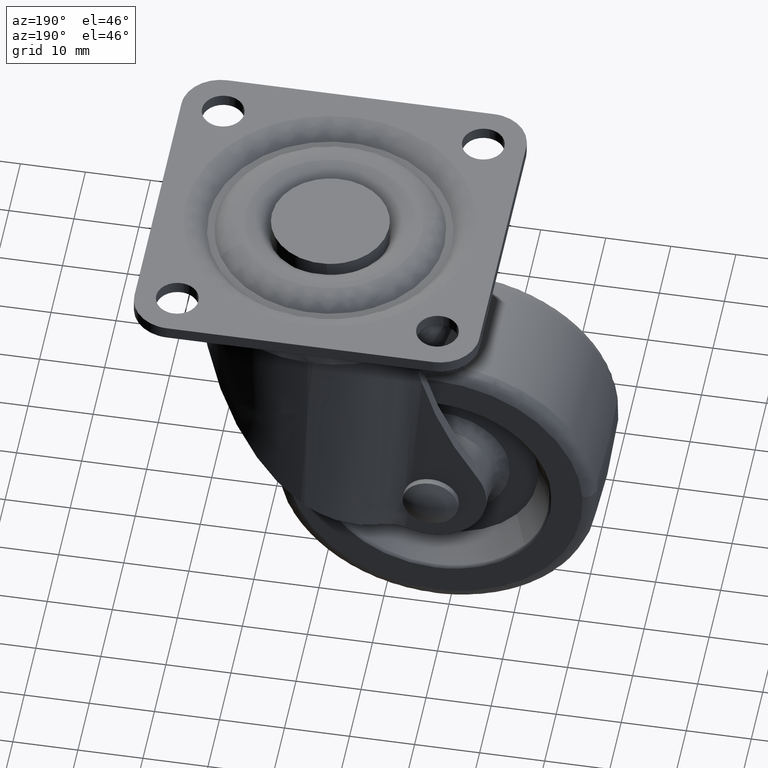
[diagram: clean part render]
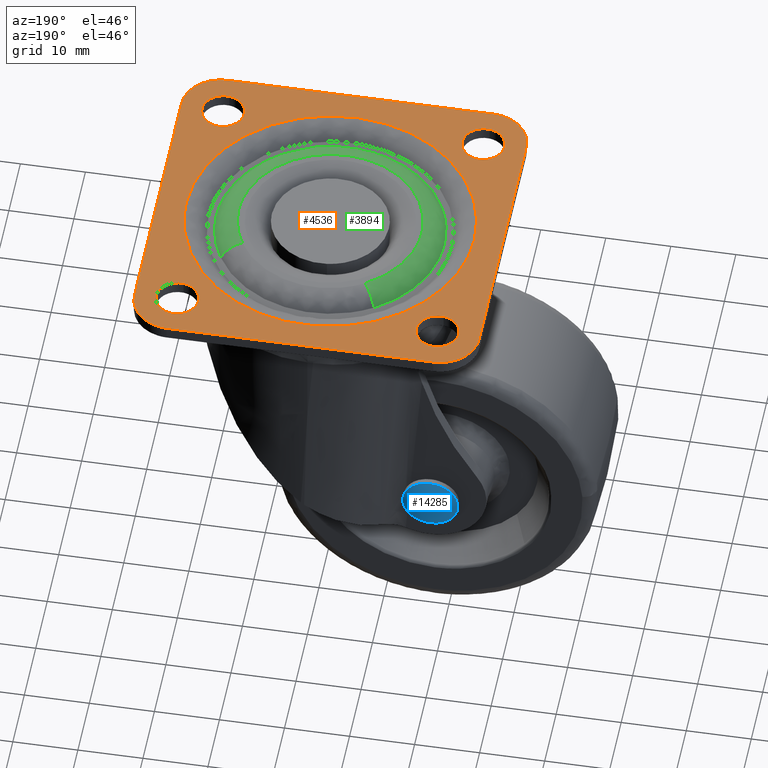
[diagram: same view with three faces highlighted in distinct colors, each labeled with its STEP entity id]
A machine part, auxiliary view with three faces highlighted in distinct colors.
Their STEP definitions:

[orange] entity #4536 — the highlighted face is a freeform B-spline surface patch.
#2809=CARTESIAN_POINT('',(-20.383611262686049,16.772719039324219,1.029293E-016));
#2810=VERTEX_POINT('',#2809);
#2811=CARTESIAN_POINT('',(-16.750000000000000,20.0,0.0));
#2812=VERTEX_POINT('',#2811);
#2813=CARTESIAN_POINT('',(-20.383611262686046,16.772719039324212,1.029293E-016));
#2814=CARTESIAN_POINT('',(-20.192478388920829,16.750000000000004,0.0));
#2815=CARTESIAN_POINT('',(-20.0,16.750000000000000,0.0));
#2816=CARTESIAN_POINT('',(-16.750000000000000,16.750000000000000,0.0));
#2817=CARTESIAN_POINT('',(-16.750000000000000,20.0,0.0));
#2825=(BOUNDED_CURVE()B_SPLINE_CURVE(2,(#2813,#2814,#2815,#2816,#2817),.UNSPECIFIED.,.F.,.U.)B_SPLINE_CURVE_WITH_KNOTS((3,2,3),(0.229562473510242,0.250000000000000,0.500000000000000),.UNSPECIFIED.)CURVE()GEOMETRIC_REPRESENTATION_ITEM()RATIONAL_B_SPLINE_CURVE((0.956026754177298,0.976055948327319,1.0,0.707106781186547,1.0))REPRESENTATION_ITEM(''));
#2826=EDGE_CURVE('',#2810,#2812,#2825,.T.);
#2828=CARTESIAN_POINT('',(-19.801592246430388,23.243938094866088,1.040834E-016));
#2829=VERTEX_POINT('',#2828);
#2830=CARTESIAN_POINT('',(-16.750000000000000,20.0,0.0));
#2831=CARTESIAN_POINT('',(-16.749999999999996,23.057294717289924,0.0));
#2832=CARTESIAN_POINT('',(-19.801592246430392,23.243938094866088,1.040834E-016));
#2840=(BOUNDED_CURVE()B_SPLINE_CURVE(2,(#2830,#2831,#2832),.UNSPECIFIED.,.F.,.U.)B_SPLINE_CURVE_WITH_KNOTS((3,3),(0.500000000000000,0.739332962233316),.UNSPECIFIED.)CURVE()GEOMETRIC_REPRESENTATION_ITEM()RATIONAL_B_SPLINE_CURVE((1.0,0.719603993293302,0.976072041654659))REPRESENTATION_ITEM(''));
#2841=EDGE_CURVE('',#2812,#2829,#2840,.T.);
#2908=CARTESIAN_POINT('',(-23.250000000000000,20.0,0.0));
#2909=VERTEX_POINT('',#2908);
#2910=CARTESIAN_POINT('',(-23.250000000000000,20.0,0.0));
#2911=CARTESIAN_POINT('',(-23.250000000000007,17.113432790750966,0.0));
#2912=CARTESIAN_POINT('',(-20.383611262686042,16.772719039324219,1.029293E-016));
#2920=(BOUNDED_CURVE()B_SPLINE_CURVE(2,(#2910,#2911,#2912),.UNSPECIFIED.,.F.,.U.)B_SPLINE_CURVE_WITH_KNOTS((3,3),(0.0,0.229562473510242),.UNSPECIFIED.)CURVE()GEOMETRIC_REPRESENTATION_ITEM()RATIONAL_B_SPLINE_CURVE((1.0,0.731050832859229,0.956026754177298))REPRESENTATION_ITEM(''));
#2921=EDGE_CURVE('',#2909,#2810,#2920,.T.);
#2955=CARTESIAN_POINT('',(-19.801592246430396,23.243938094866088,1.040834E-016));
#2956=CARTESIAN_POINT('',(-19.900703519198032,23.249999999999996,0.0));
#2957=CARTESIAN_POINT('',(-20.0,23.250000000000000,0.0));
#2958=CARTESIAN_POINT('',(-23.250000000000004,23.250000000000004,0.0));
#2959=CARTESIAN_POINT('',(-23.250000000000000,20.0,0.0));
#2967=(BOUNDED_CURVE()B_SPLINE_CURVE(2,(#2955,#2956,#2957,#2958,#2959),.UNSPECIFIED.,.F.,.U.)B_SPLINE_CURVE_WITH_KNOTS((3,2,3),(0.739332962233317,0.750000000000000,1.0),.UNSPECIFIED.)CURVE()GEOMETRIC_REPRESENTATION_ITEM()RATIONAL_B_SPLINE_CURVE((0.976072041654661,0.987502787893247,1.0,0.707106781186547,1.0))REPRESENTATION_ITEM(''));
#2968=EDGE_CURVE('',#2829,#2909,#2967,.T.);
#2995=CARTESIAN_POINT('',(19.616388737313962,16.772719039324219,1.029293E-016));
#2996=VERTEX_POINT('',#2995);
#2997=CARTESIAN_POINT('',(23.250000000000000,20.0,0.0));
#2998=VERTEX_POINT('',#2997);
#2999=CARTESIAN_POINT('',(19.616388737313954,16.772719039324215,1.029293E-016));
#3000=CARTESIAN_POINT('',(19.807521611079174,16.749999999999996,0.0));
#3001=CARTESIAN_POINT('',(20.0,16.750000000000000,0.0));
#3002=CARTESIAN_POINT('',(23.250000000000004,16.750000000000000,0.0));
#3003=CARTESIAN_POINT('',(23.250000000000000,20.0,0.0));
#3011=(BOUNDED_CURVE()B_SPLINE_CURVE(2,(#2999,#3000,#3001,#3002,#3003),.UNSPECIFIED.,.F.,.U.)B_SPLINE_CURVE_WITH_KNOTS((3,2,3),(0.229562473510243,0.250000000000000,0.500000000000000),.UNSPECIFIED.)CURVE()GEOMETRIC_REPRESENTATION_ITEM()RATIONAL_B_SPLINE_CURVE((0.956026754177298,0.976055948327319,1.0,0.707106781186547,1.0))REPRESENTATION_ITEM(''));
#3012=EDGE_CURVE('',#2996,#2998,#3011,.T.);
#3014=CARTESIAN_POINT('',(20.198407753569601,23.243938094866099,1.040834E-016));
#3015=VERTEX_POINT('',#3014);
#3016=CARTESIAN_POINT('',(23.250000000000000,20.0,0.0));
#3017=CARTESIAN_POINT('',(23.249999999999993,23.057294717289924,0.0));
#3018=CARTESIAN_POINT('',(20.198407753569601,23.243938094866099,1.040834E-016));
#3026=(BOUNDED_CURVE()B_SPLINE_CURVE(2,(#3016,#3017,#3018),.UNSPECIFIED.,.F.,.U.)B_SPLINE_CURVE_WITH_KNOTS((3,3),(0.500000000000000,0.739332962233316),.UNSPECIFIED.)CURVE()GEOMETRIC_REPRESENTATION_ITEM()RATIONAL_B_SPLINE_CURVE((1.0,0.719603993293302,0.976072041654659))REPRESENTATION_ITEM(''));
#3027=EDGE_CURVE('',#2998,#3015,#3026,.T.);
#3094=CARTESIAN_POINT('',(16.750000000000000,20.0,0.0));
#3095=VERTEX_POINT('',#3094);
#3096=CARTESIAN_POINT('',(16.750000000000000,20.0,0.0));
#3097=CARTESIAN_POINT('',(16.750000000000000,17.113432790750970,0.0));
#3098=CARTESIAN_POINT('',(19.616388737313954,16.772719039324215,1.029293E-016));
#3106=(BOUNDED_CURVE()B_SPLINE_CURVE(2,(#3096,#3097,#3098),.UNSPECIFIED.,.F.,.U.)B_SPLINE_CURVE_WITH_KNOTS((3,3),(0.0,0.229562473510243),.UNSPECIFIED.)CURVE()GEOMETRIC_REPRESENTATION_ITEM()RATIONAL_B_SPLINE_CURVE((1.0,0.731050832859229,0.956026754177298))REPRESENTATION_ITEM(''));
#3107=EDGE_CURVE('',#3095,#2996,#3106,.T.);
#3141=CARTESIAN_POINT('',(20.198407753569604,23.243938094866103,1.040834E-016));
#3142=CARTESIAN_POINT('',(20.099296480801964,23.250000000000004,0.0));
#3143=CARTESIAN_POINT('',(20.0,23.250000000000000,0.0));
#3144=CARTESIAN_POINT('',(16.750000000000000,23.250000000000004,0.0));
#3145=CARTESIAN_POINT('',(16.750000000000000,20.0,0.0));
#3153=(BOUNDED_CURVE()B_SPLINE_CURVE(2,(#3141,#3142,#3143,#3144,#3145),.UNSPECIFIED.,.F.,.U.)B_SPLINE_CURVE_WITH_KNOTS((3,2,3),(0.739332962233317,0.750000000000000,1.0),.UNSPECIFIED.)CURVE()GEOMETRIC_REPRESENTATION_ITEM()RATIONAL_B_SPLINE_CURVE((0.976072041654661,0.987502787893247,1.0,0.707106781186547,1.0))REPRESENTATION_ITEM(''));
#3154=EDGE_CURVE('',#3015,#3095,#3153,.T.);
#3181=CARTESIAN_POINT('',(19.616388737313962,-23.227280960675792,1.029293E-016));
#3182=VERTEX_POINT('',#3181);
#3183=CARTESIAN_POINT('',(23.250000000000000,-20.0,0.0));
#3184=VERTEX_POINT('',#3183);
#3185=CARTESIAN_POINT('',(19.616388737313954,-23.227280960675788,1.029293E-016));
#3186=CARTESIAN_POINT('',(19.807521611079174,-23.250000000000007,0.0));
#3187=CARTESIAN_POINT('',(20.0,-23.250000000000000,0.0));
#3188=CARTESIAN_POINT('',(23.250000000000004,-23.250000000000004,0.0));
#3189=CARTESIAN_POINT('',(23.250000000000000,-20.0,0.0));
#3197=(BOUNDED_CURVE()B_SPLINE_CURVE(2,(#3185,#3186,#3187,#3188,#3189),.UNSPECIFIED.,.F.,.U.)B_SPLINE_CURVE_WITH_KNOTS((3,2,3),(0.229562473510243,0.250000000000000,0.500000000000000),.UNSPECIFIED.)CURVE()GEOMETRIC_REPRESENTATION_ITEM()RATIONAL_B_SPLINE_CURVE((0.956026754177298,0.976055948327319,1.0,0.707106781186547,1.0))REPRESENTATION_ITEM(''));
#3198=EDGE_CURVE('',#3182,#3184,#3197,.T.);
#3200=CARTESIAN_POINT('',(20.198407753569601,-16.756061905133912,1.040834E-016));
#3201=VERTEX_POINT('',#3200);
#3202=CARTESIAN_POINT('',(23.250000000000000,-20.0,0.0));
#3203=CARTESIAN_POINT('',(23.249999999999996,-16.942705282710044,0.0));
#3204=CARTESIAN_POINT('',(20.198407753569604,-16.756061905133905,1.040834E-016));
#3212=(BOUNDED_CURVE()B_SPLINE_CURVE(2,(#3202,#3203,#3204),.UNSPECIFIED.,.F.,.U.)B_SPLINE_CURVE_WITH_KNOTS((3,3),(0.500000000000000,0.739332962233318),.UNSPECIFIED.)CURVE()GEOMETRIC_REPRESENTATION_ITEM()RATIONAL_B_SPLINE_CURVE((1.0,0.719603993293299,0.976072041654664))REPRESENTATION_ITEM(''));
#3213=EDGE_CURVE('',#3184,#3201,#3212,.T.);
#3280=CARTESIAN_POINT('',(16.750000000000000,-20.0,0.0));
#3281=VERTEX_POINT('',#3280);
#3282=CARTESIAN_POINT('',(16.750000000000000,-20.0,0.0));
#3283=CARTESIAN_POINT('',(16.750000000000000,-22.886567209249037,0.0));
#3284=CARTESIAN_POINT('',(19.616388737313954,-23.227280960675788,1.029293E-016));
#3292=(BOUNDED_CURVE()B_SPLINE_CURVE(2,(#3282,#3283,#3284),.UNSPECIFIED.,.F.,.U.)B_SPLINE_CURVE_WITH_KNOTS((3,3),(0.0,0.229562473510243),.UNSPECIFIED.)CURVE()GEOMETRIC_REPRESENTATION_ITEM()RATIONAL_B_SPLINE_CURVE((1.0,0.731050832859229,0.956026754177298))REPRESENTATION_ITEM(''));
#3293=EDGE_CURVE('',#3281,#3182,#3292,.T.);
#3327=CARTESIAN_POINT('',(20.198407753569608,-16.756061905133908,1.040834E-016));
#3328=CARTESIAN_POINT('',(20.099296480801961,-16.749999999999996,0.0));
#3329=CARTESIAN_POINT('',(20.0,-16.750000000000000,0.0));
#3330=CARTESIAN_POINT('',(16.750000000000000,-16.750000000000000,0.0));
#3331=CARTESIAN_POINT('',(16.750000000000000,-20.0,0.0));
#3339=(BOUNDED_CURVE()B_SPLINE_CURVE(2,(#3327,#3328,#3329,#3330,#3331),.UNSPECIFIED.,.F.,.U.)B_SPLINE_CURVE_WITH_KNOTS((3,2,3),(0.739332962233317,0.750000000000000,1.0),.UNSPECIFIED.)CURVE()GEOMETRIC_REPRESENTATION_ITEM()RATIONAL_B_SPLINE_CURVE((0.976072041654661,0.987502787893247,1.0,0.707106781186547,1.0))REPRESENTATION_ITEM(''));
#3340=EDGE_CURVE('',#3201,#3281,#3339,.T.);
#3367=CARTESIAN_POINT('',(-20.383611262686049,-23.227280960675792,1.029293E-016));
#3368=VERTEX_POINT('',#3367);
#3369=CARTESIAN_POINT('',(-16.750000000000000,-20.0,0.0));
#3370=VERTEX_POINT('',#3369);
#3371=CARTESIAN_POINT('',(-20.383611262686046,-23.227280960675788,1.029293E-016));
#3372=CARTESIAN_POINT('',(-20.192478388920829,-23.250000000000000,0.0));
#3373=CARTESIAN_POINT('',(-20.0,-23.250000000000000,0.0));
#3374=CARTESIAN_POINT('',(-16.750000000000000,-23.250000000000004,0.0));
#3375=CARTESIAN_POINT('',(-16.750000000000000,-20.0,0.0));
#3383=(BOUNDED_CURVE()B_SPLINE_CURVE(2,(#3371,#3372,#3373,#3374,#3375),.UNSPECIFIED.,.F.,.U.)B_SPLINE_CURVE_WITH_KNOTS((3,2,3),(0.229562473510242,0.250000000000000,0.500000000000000),.UNSPECIFIED.)CURVE()GEOMETRIC_REPRESENTATION_ITEM()RATIONAL_B_SPLINE_CURVE((0.956026754177298,0.976055948327319,1.0,0.707106781186547,1.0))REPRESENTATION_ITEM(''));
#3384=EDGE_CURVE('',#3368,#3370,#3383,.T.);
#3386=CARTESIAN_POINT('',(-19.801592246430388,-16.756061905133912,1.040834E-016));
#3387=VERTEX_POINT('',#3386);
#3388=CARTESIAN_POINT('',(-16.750000000000000,-20.0,0.0));
#3389=CARTESIAN_POINT('',(-16.749999999999996,-16.942705282710079,0.0));
#3390=CARTESIAN_POINT('',(-19.801592246430392,-16.756061905133905,1.040834E-016));
#3398=(BOUNDED_CURVE()B_SPLINE_CURVE(2,(#3388,#3389,#3390),.UNSPECIFIED.,.F.,.U.)B_SPLINE_CURVE_WITH_KNOTS((3,3),(0.500000000000000,0.739332962233316),.UNSPECIFIED.)CURVE()GEOMETRIC_REPRESENTATION_ITEM()RATIONAL_B_SPLINE_CURVE((1.0,0.719603993293302,0.976072041654659))REPRESENTATION_ITEM(''));
#3399=EDGE_CURVE('',#3370,#3387,#3398,.T.);
#3466=CARTESIAN_POINT('',(-23.250000000000000,-20.0,0.0));
#3467=VERTEX_POINT('',#3466);
#3468=CARTESIAN_POINT('',(-23.250000000000000,-20.0,0.0));
#3469=CARTESIAN_POINT('',(-23.250000000000007,-22.886567209249034,0.0));
#3470=CARTESIAN_POINT('',(-20.383611262686042,-23.227280960675785,1.029293E-016));
#3478=(BOUNDED_CURVE()B_SPLINE_CURVE(2,(#3468,#3469,#3470),.UNSPECIFIED.,.F.,.U.)B_SPLINE_CURVE_WITH_KNOTS((3,3),(0.0,0.229562473510242),.UNSPECIFIED.)CURVE()GEOMETRIC_REPRESENTATION_ITEM()RATIONAL_B_SPLINE_CURVE((1.0,0.731050832859229,0.956026754177298))REPRESENTATION_ITEM(''));
#3479=EDGE_CURVE('',#3467,#3368,#3478,.T.);
#3513=CARTESIAN_POINT('',(-19.801592246430396,-16.756061905133908,1.040834E-016));
#3514=CARTESIAN_POINT('',(-19.900703519198032,-16.750000000000000,0.0));
#3515=CARTESIAN_POINT('',(-20.0,-16.750000000000000,0.0));
#3516=CARTESIAN_POINT('',(-23.250000000000004,-16.750000000000000,0.0));
#3517=CARTESIAN_POINT('',(-23.250000000000000,-20.0,0.0));
#3525=(BOUNDED_CURVE()B_SPLINE_CURVE(2,(#3513,#3514,#3515,#3516,#3517),.UNSPECIFIED.,.F.,.U.)B_SPLINE_CURVE_WITH_KNOTS((3,2,3),(0.739332962233317,0.750000000000000,1.0),.UNSPECIFIED.)CURVE()GEOMETRIC_REPRESENTATION_ITEM()RATIONAL_B_SPLINE_CURVE((0.976072041654661,0.987502787893247,1.0,0.707106781186547,1.0))REPRESENTATION_ITEM(''));
#3526=EDGE_CURVE('',#3387,#3467,#3525,.T.);
#3609=CARTESIAN_POINT('',(-19.286841162281359,10.920858866609480,-6.720702E-016));
#3610=VERTEX_POINT('',#3609);
#3624=CARTESIAN_POINT('',(-22.164101615137749,0.0,0.0));
#3625=VERTEX_POINT('',#3624);
#3626=CARTESIAN_POINT('',(-22.164101615137749,0.0,0.0));
#3627=CARTESIAN_POINT('',(-22.164101615137749,5.839457667932270,0.0));
#3628=CARTESIAN_POINT('',(-19.286841162281362,10.920858866609478,-6.720702E-016));
#3636=(BOUNDED_CURVE()B_SPLINE_CURVE(2,(#3626,#3627,#3628),.UNSPECIFIED.,.F.,.U.)B_SPLINE_CURVE_WITH_KNOTS((3,3),(0.0,0.083983638484645),.UNSPECIFIED.)CURVE()GEOMETRIC_REPRESENTATION_ITEM()RATIONAL_B_SPLINE_CURVE((1.0,0.901607047186268,0.869321279800898))REPRESENTATION_ITEM(''));
#3637=EDGE_CURVE('',#3625,#3610,#3636,.T.);
#3639=CARTESIAN_POINT('',(22.164101615137749,0.0,0.0));
#3640=VERTEX_POINT('',#3639);
#3641=CARTESIAN_POINT('',(22.164101615137749,0.0,0.0));
#3642=CARTESIAN_POINT('',(22.164101615137742,-22.164101615137742,0.0));
#3643=CARTESIAN_POINT('',(0.0,-22.164101615137749,0.0));
#3644=CARTESIAN_POINT('',(-22.164101615137742,-22.164101615137742,0.0));
#3645=CARTESIAN_POINT('',(-22.164101615137749,0.0,0.0));
#3653=(BOUNDED_CURVE()B_SPLINE_CURVE(2,(#3641,#3642,#3643,#3644,#3645),.UNSPECIFIED.,.F.,.U.)B_SPLINE_CURVE_WITH_KNOTS((3,2,3),(0.500000000000000,0.750000000000000,1.0),.UNSPECIFIED.)CURVE()GEOMETRIC_REPRESENTATION_ITEM()RATIONAL_B_SPLINE_CURVE((1.0,0.707106781186548,1.0,0.707106781186548,1.0))REPRESENTATION_ITEM(''));
#3654=EDGE_CURVE('',#3640,#3625,#3653,.T.);
#3656=CARTESIAN_POINT('',(10.920858866609480,19.286841162281359,-6.720702E-016));
#3657=VERTEX_POINT('',#3656);
#3658=CARTESIAN_POINT('',(10.920858866609478,19.286841162281362,-6.720702E-016));
#3659=CARTESIAN_POINT('',(22.164101615137756,12.920538550810214,0.0));
#3660=CARTESIAN_POINT('',(22.164101615137749,0.0,0.0));
#3668=(BOUNDED_CURVE()B_SPLINE_CURVE(2,(#3658,#3659,#3660),.UNSPECIFIED.,.F.,.U.)B_SPLINE_CURVE_WITH_KNOTS((3,3),(0.333983638484645,0.500000000000000),.UNSPECIFIED.)CURVE()GEOMETRIC_REPRESENTATION_ITEM()RATIONAL_B_SPLINE_CURVE((0.869321279800898,0.805499734000279,1.0))REPRESENTATION_ITEM(''));
#3669=EDGE_CURVE('',#3657,#3640,#3668,.T.);
#3720=CARTESIAN_POINT('',(-19.286841162281362,10.920858866609478,-6.720702E-016));
#3721=CARTESIAN_POINT('',(-12.920538550810214,22.164101615137742,0.0));
#3722=CARTESIAN_POINT('',(0.0,22.164101615137749,0.0));
#3723=CARTESIAN_POINT('',(5.839457667932281,22.164101615137749,0.0));
#3724=CARTESIAN_POINT('',(10.920858866609478,19.286841162281366,-6.720702E-016));
#3732=(BOUNDED_CURVE()B_SPLINE_CURVE(2,(#3720,#3721,#3722,#3723,#3724),.UNSPECIFIED.,.F.,.U.)B_SPLINE_CURVE_WITH_KNOTS((3,2,3),(0.083983638484645,0.250000000000000,0.333983638484645),.UNSPECIFIED.)CURVE()GEOMETRIC_REPRESENTATION_ITEM()RATIONAL_B_SPLINE_CURVE((0.869321279800898,0.805499734000279,1.0,0.901607047186268,0.869321279800898))REPRESENTATION_ITEM(''));
#3733=EDGE_CURVE('',#3610,#3657,#3732,.T.);
#4411=CARTESIAN_POINT('',(-29.147349897275721,29.147349897275721,0.0));
#4412=CARTESIAN_POINT('',(29.147351318846500,29.147349897275721,0.0));
#4413=CARTESIAN_POINT('',(-29.147349897275721,-29.147351318846489,0.0));
#4414=CARTESIAN_POINT('',(29.147351318846500,-29.147351318846489,0.0));
#4415=B_SPLINE_SURFACE_WITH_KNOTS('',1,1,((#4411,#4413),(#4412,#4414)),.UNSPECIFIED.,.F.,.F.,.U.,(2,2),(2,2),(0.0,58.294701216122220),(0.0,58.294701216122213),.UNSPECIFIED.);
#4416=CARTESIAN_POINT('',(20.500000000000000,26.500000000000000,0.0));
#4417=VERTEX_POINT('',#4416);
#4418=CARTESIAN_POINT('',(-20.500000000000000,26.500000000000000,0.0));
#4419=VERTEX_POINT('',#4418);
#4420=CARTESIAN_POINT('',(20.500000000000000,26.500000000000000,0.0));
#4421=CARTESIAN_POINT('',(-20.500000000000000,26.500000000000000,0.0));
#4422=QUASI_UNIFORM_CURVE('',1,(#4420,#4421),.UNSPECIFIED.,.F.,.U.);
#4423=EDGE_CURVE('',#4417,#4419,#4422,.T.);
#4424=ORIENTED_EDGE('',*,*,#4423,.T.);
#4425=CARTESIAN_POINT('',(-26.500000000000000,20.500000000000000,0.0));
#4426=VERTEX_POINT('',#4425);
#4427=CARTESIAN_POINT('',(-20.500000000000000,26.500000000000000,0.0));
#4428=CARTESIAN_POINT('',(-26.500000000000000,26.500000000000000,0.0));
#4429=CARTESIAN_POINT('',(-26.500000000000000,20.500000000000000,0.0));
#4437=(BOUNDED_CURVE()B_SPLINE_CURVE(2,(#4427,#4428,#4429),.UNSPECIFIED.,.F.,.U.)CURVE()GEOMETRIC_REPRESENTATION_ITEM()QUASI_UNIFORM_CURVE()RATIONAL_B_SPLINE_CURVE((1.0,0.707106781186548,1.0))REPRESENTATION_ITEM(''));
#4438=EDGE_CURVE('',#4419,#4426,#4437,.T.);
#4439=ORIENTED_EDGE('',*,*,#4438,.T.);
#4440=CARTESIAN_POINT('',(-26.500000000000000,-20.500000000000000,0.0));
#4441=VERTEX_POINT('',#4440);
#4442=CARTESIAN_POINT('',(-26.500000000000000,20.500000000000000,0.0));
#4443=CARTESIAN_POINT('',(-26.500000000000000,-20.500000000000000,0.0));
#4444=QUASI_UNIFORM_CURVE('',1,(#4442,#4443),.UNSPECIFIED.,.F.,.U.);
#4445=EDGE_CURVE('',#4426,#4441,#4444,.T.);
#4446=ORIENTED_EDGE('',*,*,#4445,.T.);
#4447=CARTESIAN_POINT('',(-20.500000000000000,-26.500000000000000,0.0));
#4448=VERTEX_POINT('',#4447);
#4449=CARTESIAN_POINT('',(-26.500000000000000,-20.500000000000000,0.0));
#4450=CARTESIAN_POINT('',(-26.500000000000000,-26.500000000000000,0.0));
#4451=CARTESIAN_POINT('',(-20.500000000000000,-26.500000000000000,0.0));
#4459=(BOUNDED_CURVE()B_SPLINE_CURVE(2,(#4449,#4450,#4451),.UNSPECIFIED.,.F.,.U.)CURVE()GEOMETRIC_REPRESENTATION_ITEM()QUASI_UNIFORM_CURVE()RATIONAL_B_SPLINE_CURVE((1.0,0.707106781186548,1.0))REPRESENTATION_ITEM(''));
#4460=EDGE_CURVE('',#4441,#4448,#4459,.T.);
#4461=ORIENTED_EDGE('',*,*,#4460,.T.);
#4462=CARTESIAN_POINT('',(20.500000000000000,-26.500000000000000,0.0));
#4463=VERTEX_POINT('',#4462);
#4464=CARTESIAN_POINT('',(-20.500000000000000,-26.500000000000000,0.0));
#4465=CARTESIAN_POINT('',(20.500000000000000,-26.500000000000000,0.0));
#4466=QUASI_UNIFORM_CURVE('',1,(#4464,#4465),.UNSPECIFIED.,.F.,.U.);
#4467=EDGE_CURVE('',#4448,#4463,#4466,.T.);
#4468=ORIENTED_EDGE('',*,*,#4467,.T.);
#4469=CARTESIAN_POINT('',(26.500000000000000,-20.500000000000000,0.0));
#4470=VERTEX_POINT('',#4469);
#4471=CARTESIAN_POINT('',(20.500000000000000,-26.500000000000000,0.0));
#4472=CARTESIAN_POINT('',(26.500000000000000,-26.500000000000000,0.0));
#4473=CARTESIAN_POINT('',(26.500000000000000,-20.500000000000000,0.0));
#4481=(BOUNDED_CURVE()B_SPLINE_CURVE(2,(#4471,#4472,#4473),.UNSPECIFIED.,.F.,.U.)CURVE()GEOMETRIC_REPRESENTATION_ITEM()QUASI_UNIFORM_CURVE()RATIONAL_B_SPLINE_CURVE((1.0,0.707106781186548,1.0))REPRESENTATION_ITEM(''));
#4482=EDGE_CURVE('',#4463,#4470,#4481,.T.);
#4483=ORIENTED_EDGE('',*,*,#4482,.T.);
#4484=CARTESIAN_POINT('',(26.500000000000000,20.500000000000000,0.0));
#4485=VERTEX_POINT('',#4484);
#4486=CARTESIAN_POINT('',(26.500000000000000,-20.500000000000000,0.0));
#4487=CARTESIAN_POINT('',(26.500000000000000,20.500000000000000,0.0));
#4488=QUASI_UNIFORM_CURVE('',1,(#4486,#4487),.UNSPECIFIED.,.F.,.U.);
#4489=EDGE_CURVE('',#4470,#4485,#4488,.T.);
#4490=ORIENTED_EDGE('',*,*,#4489,.T.);
#4491=CARTESIAN_POINT('',(26.500000000000000,20.500000000000000,0.0));
#4492=CARTESIAN_POINT('',(26.500000000000000,26.500000000000000,0.0));
#4493=CARTESIAN_POINT('',(20.500000000000000,26.500000000000000,0.0));
#4501=(BOUNDED_CURVE()B_SPLINE_CURVE(2,(#4491,#4492,#4493),.UNSPECIFIED.,.F.,.U.)CURVE()GEOMETRIC_REPRESENTATION_ITEM()QUASI_UNIFORM_CURVE()RATIONAL_B_SPLINE_CURVE((1.0,0.707106781186548,1.0))REPRESENTATION_ITEM(''));
#4502=EDGE_CURVE('',#4485,#4417,#4501,.T.);
#4503=ORIENTED_EDGE('',*,*,#4502,.T.);
#4504=EDGE_LOOP('',(#4424,#4439,#4446,#4461,#4468,#4483,#4490,#4503));
#4505=FACE_OUTER_BOUND('',#4504,.T.);
#4506=ORIENTED_EDGE('',*,*,#3654,.T.);
#4507=ORIENTED_EDGE('',*,*,#3637,.T.);
#4508=ORIENTED_EDGE('',*,*,#3733,.T.);
#4509=ORIENTED_EDGE('',*,*,#3669,.T.);
#4510=EDGE_LOOP('',(#4506,#4507,#4508,#4509));
#4511=FACE_BOUND('',#4510,.T.);
#4512=ORIENTED_EDGE('',*,*,#3399,.F.);
#4513=ORIENTED_EDGE('',*,*,#3384,.F.);
#4514=ORIENTED_EDGE('',*,*,#3479,.F.);
#4515=ORIENTED_EDGE('',*,*,#3526,.F.);
#4516=EDGE_LOOP('',(#4512,#4513,#4514,#4515));
#4517=FACE_BOUND('',#4516,.T.);
#4518=ORIENTED_EDGE('',*,*,#3213,.F.);
#4519=ORIENTED_EDGE('',*,*,#3198,.F.);
#4520=ORIENTED_EDGE('',*,*,#3293,.F.);
#4521=ORIENTED_EDGE('',*,*,#3340,.F.);
#4522=EDGE_LOOP('',(#4518,#4519,#4520,#4521));
#4523=FACE_BOUND('',#4522,.T.);
#4524=ORIENTED_EDGE('',*,*,#3027,.F.);
#4525=ORIENTED_EDGE('',*,*,#3012,.F.);
#4526=ORIENTED_EDGE('',*,*,#3107,.F.);
#4527=ORIENTED_EDGE('',*,*,#3154,.F.);
#4528=EDGE_LOOP('',(#4524,#4525,#4526,#4527));
#4529=FACE_BOUND('',#4528,.T.);
#4530=ORIENTED_EDGE('',*,*,#2841,.F.);
#4531=ORIENTED_EDGE('',*,*,#2826,.F.);
#4532=ORIENTED_EDGE('',*,*,#2921,.F.);
#4533=ORIENTED_EDGE('',*,*,#2968,.F.);
#4534=EDGE_LOOP('',(#4530,#4531,#4532,#4533));
#4535=FACE_BOUND('',#4534,.T.);
#4536=ADVANCED_FACE('',(#4505,#4511,#4517,#4523,#4529,#4535),#4415,.F.);

[blue] entity #14285 — the highlighted face is a freeform B-spline surface patch.
#13686=CARTESIAN_POINT('',(-22.242072893288299,14.933316000000040,-43.259159293097532));
#13687=VERTEX_POINT('',#13686);
#13693=CARTESIAN_POINT('',(-18.0,14.933316000000040,-47.249702999999911));
#13694=VERTEX_POINT('',#13693);
#13695=CARTESIAN_POINT('',(-18.0,14.933316000000040,-47.249702999999911));
#13696=CARTESIAN_POINT('',(-21.998000784208639,14.933316000000039,-47.249702999999911));
#13697=CARTESIAN_POINT('',(-22.242072893288302,14.933316000000042,-43.259159293097525));
#13705=(BOUNDED_CURVE()B_SPLINE_CURVE(2,(#13695,#13696,#13697),.UNSPECIFIED.,.F.,.U.)B_SPLINE_CURVE_WITH_KNOTS((3,3),(0.500000000000000,0.739332962235916),.UNSPECIFIED.)CURVE()GEOMETRIC_REPRESENTATION_ITEM()RATIONAL_B_SPLINE_CURVE((1.0,0.719603993290256,0.976072041660231))REPRESENTATION_ITEM(''));
#13706=EDGE_CURVE('',#13694,#13687,#13705,.T.);
#13708=CARTESIAN_POINT('',(-13.779709512958741,14.933316000000040,-42.498057502673127));
#13709=VERTEX_POINT('',#13708);
#13710=CARTESIAN_POINT('',(-13.779709512958744,14.933316000000037,-42.498057502673134));
#13711=CARTESIAN_POINT('',(-13.750000000000082,14.933316000000044,-42.748000491443342));
#13712=CARTESIAN_POINT('',(-13.750000000000080,14.933316000000040,-42.999702999999997));
#13713=CARTESIAN_POINT('',(-13.750000000000082,14.933316000000042,-47.249702999999911));
#13714=CARTESIAN_POINT('',(-18.0,14.933316000000040,-47.249702999999911));
#13722=(BOUNDED_CURVE()B_SPLINE_CURVE(2,(#13710,#13711,#13712,#13713,#13714),.UNSPECIFIED.,.F.,.U.)B_SPLINE_CURVE_WITH_KNOTS((3,2,3),(0.229562473512789,0.250000000000000,0.500000000000000),.UNSPECIFIED.)CURVE()GEOMETRIC_REPRESENTATION_ITEM()RATIONAL_B_SPLINE_CURVE((0.956026754182288,0.976055948330302,1.0,0.707106781186548,1.0))REPRESENTATION_ITEM(''));
#13723=EDGE_CURVE('',#13709,#13694,#13722,.T.);
#13767=CARTESIAN_POINT('',(-18.0,14.933316000000040,-38.749703000000089));
#13768=VERTEX_POINT('',#13767);
#13769=CARTESIAN_POINT('',(-18.0,14.933316000000040,-38.749703000000089));
#13770=CARTESIAN_POINT('',(-14.225258264770991,14.933316000000037,-38.749703000000096));
#13771=CARTESIAN_POINT('',(-13.779709512958735,14.933316000000040,-42.498057502673142));
#13779=(BOUNDED_CURVE()B_SPLINE_CURVE(2,(#13769,#13770,#13771),.UNSPECIFIED.,.F.,.U.)B_SPLINE_CURVE_WITH_KNOTS((3,3),(0.0,0.229562473512788),.UNSPECIFIED.)CURVE()GEOMETRIC_REPRESENTATION_ITEM()RATIONAL_B_SPLINE_CURVE((1.0,0.731050832856246,0.956026754182288))REPRESENTATION_ITEM(''));
#13780=EDGE_CURVE('',#13768,#13709,#13779,.T.);
#13782=CARTESIAN_POINT('',(-22.242072893288306,14.933316000000037,-43.259159293097525));
#13783=CARTESIAN_POINT('',(-22.249999999999915,14.933316000000040,-43.129552244093595));
#13784=CARTESIAN_POINT('',(-22.249999999999918,14.933316000000040,-42.999702999999997));
#13785=CARTESIAN_POINT('',(-22.249999999999908,14.933316000000042,-38.749703000000089));
#13786=CARTESIAN_POINT('',(-18.0,14.933316000000040,-38.749703000000089));
#13794=(BOUNDED_CURVE()B_SPLINE_CURVE(2,(#13782,#13783,#13784,#13785,#13786),.UNSPECIFIED.,.F.,.U.)B_SPLINE_CURVE_WITH_KNOTS((3,2,3),(0.739332962235916,0.750000000000000,1.0),.UNSPECIFIED.)CURVE()GEOMETRIC_REPRESENTATION_ITEM()RATIONAL_B_SPLINE_CURVE((0.976072041660232,0.987502787896292,1.0,0.707106781186548,1.0))REPRESENTATION_ITEM(''));
#13795=EDGE_CURVE('',#13687,#13768,#13794,.T.);
#14255=CARTESIAN_POINT('',(-22.311764384209759,13.619406972391049,-38.687842702063499));
#14256=CARTESIAN_POINT('',(-20.308536754714364,14.725392145570662,-38.382526785347260));
#14257=CARTESIAN_POINT('',(-15.691450080178244,14.725392145570662,-38.382526785347260));
#14258=CARTESIAN_POINT('',(-13.688214278678823,13.619395192099045,-38.687845954105860));
#14259=CARTESIAN_POINT('',(-22.617088054420911,14.725444834941449,-40.691107620015728));
#14260=CARTESIAN_POINT('',(-20.484465609128520,16.0,-40.515182124782157));
#14261=CARTESIAN_POINT('',(-15.515520222478250,16.0,-40.515182124782157));
#14262=CARTESIAN_POINT('',(-13.382889344134357,14.725431327213512,-40.691109484473095));
#14263=CARTESIAN_POINT('',(-22.617088054420911,14.725444834941449,-45.308297870365550));
#14264=CARTESIAN_POINT('',(-20.484465609128520,16.0,-45.484223326763903));
#14265=CARTESIAN_POINT('',(-15.515520222478250,16.0,-45.484223326763903));
#14266=CARTESIAN_POINT('',(-13.382889344134357,14.725431327213512,-45.308296005908637));
#14267=CARTESIAN_POINT('',(-22.311764510094999,13.619407428411506,-47.311562471988388));
#14268=CARTESIAN_POINT('',(-20.308536826886300,14.725392668457687,-47.616878339765670));
#14269=CARTESIAN_POINT('',(-15.691450008005909,14.725392668457687,-47.616878339765670));
#14270=CARTESIAN_POINT('',(-13.688214152793059,13.619395648118815,-47.311559219946517));
#14278=(BOUNDED_SURFACE()B_SPLINE_SURFACE(2,2,((#14255,#14259,#14263,#14267),(#14256,#14260,#14264,#14268),(#14257,#14261,#14265,#14269),(#14258,#14262,#14266,#14270)),.UNSPECIFIED.,.F.,.F.,.U.)B_SPLINE_SURFACE_WITH_KNOTS((3,1,3),(3,1,3),(0.0,4.786548779606548,9.573124855910255),(0.0,4.786655254750084,9.573309452853827),.UNSPECIFIED.)GEOMETRIC_REPRESENTATION_ITEM()RATIONAL_B_SPLINE_SURFACE(((1.152412510399204,1.076204560036326,1.076204560036326,1.152412476753646),(1.076207950362879,1.0,1.0,1.076207916717321),(1.076207950362879,1.0,1.0,1.076207916717321),(1.152413379559355,1.076205429196476,1.076205429196476,1.152413345913797)))REPRESENTATION_ITEM('')SURFACE());
#14279=ORIENTED_EDGE('',*,*,#13780,.T.);
#14280=ORIENTED_EDGE('',*,*,#13723,.T.);
#14281=ORIENTED_EDGE('',*,*,#13706,.T.);
#14282=ORIENTED_EDGE('',*,*,#13795,.T.);
#14283=EDGE_LOOP('',(#14279,#14280,#14281,#14282));
#14284=FACE_OUTER_BOUND('',#14283,.T.);
#14285=ADVANCED_FACE('',(#14284),#14278,.T.);

[green] entity #3894 — the highlighted face is a freeform B-spline surface patch.
#3739=CARTESIAN_POINT('',(-9.370972055380136,14.950973127262051,-2.174443489445107));
#3740=CARTESIAN_POINT('',(-23.489974957974127,6.101463431549768,-2.174443489445106));
#3741=CARTESIAN_POINT('',(-15.462448496077743,-8.500552995009834,-2.174443489445107));
#3742=CARTESIAN_POINT('',(-6.961895501067906,-23.963001491087571,-2.174443489445107));
#3743=CARTESIAN_POINT('',(8.500552995009834,-15.462448496077743,-2.174443489445107));
#3744=CARTESIAN_POINT('',(23.963001491087571,-6.961895501067908,-2.174443489445107));
#3745=CARTESIAN_POINT('',(15.462448496077743,8.500552995009830,-2.174443489445107));
#3746=CARTESIAN_POINT('',(-8.745143474348980,13.952491193693866,0.122976446364422));
#3747=CARTESIAN_POINT('',(-21.921226528299076,5.693984871266579,0.122976446364422));
#3748=CARTESIAN_POINT('',(-14.429808323384883,-7.932854256030788,0.122976446364422));
#3749=CARTESIAN_POINT('',(-6.496954067354090,-22.362662579415666,0.122976446364422));
#3750=CARTESIAN_POINT('',(7.932854256030788,-14.429808323384883,0.122976446364422));
#3751=CARTESIAN_POINT('',(22.362662579415666,-6.496954067354094,0.122976446364422));
#3752=CARTESIAN_POINT('',(14.429808323384883,7.932854256030788,0.122976446364422));
#3753=CARTESIAN_POINT('',(-7.375565549644155,11.767389944117840,-0.004909374644444));
#3754=CARTESIAN_POINT('',(-18.488140722025634,4.802249246097719,-0.004909374644444));
#3755=CARTESIAN_POINT('',(-12.169954383264006,-6.690489039173178,-0.004909374644444));
#3756=CARTESIAN_POINT('',(-5.479465344090832,-18.860443422437182,-0.004909374644444));
#3757=CARTESIAN_POINT('',(6.690489039173178,-12.169954383264006,-0.004909374644444));
#3758=CARTESIAN_POINT('',(18.860443422437182,-5.479465344090832,-0.004909374644444));
#3759=CARTESIAN_POINT('',(12.169954383264006,6.690489039173178,-0.004909374644444));
#3767=(BOUNDED_SURFACE()B_SPLINE_SURFACE(2,2,((#3739,#3746,#3753),(#3740,#3747,#3754),(#3741,#3748,#3755),(#3742,#3749,#3756),(#3743,#3750,#3757),(#3744,#3751,#3758),(#3745,#3752,#3759)),.UNSPECIFIED.,.F.,.F.,.U.)B_SPLINE_SURFACE_WITH_KNOTS((3,2,2,3),(3,3),(0.0,28.065816589599720,57.301042203766102,86.536267817932483),(0.0,4.715476447656632),.UNSPECIFIED.)GEOMETRIC_REPRESENTATION_ITEM()RATIONAL_B_SPLINE_SURFACE(((0.902172404210531,0.758898091217935,0.904371691780863),(0.663425047160729,0.558066284899306,0.665042323917653),(0.922933043953992,0.776361726549990,0.925182941160273),(0.652612213961010,0.548970641497194,0.654203131532544),(0.922933043953992,0.776361726549990,0.925182941160273),(0.652612213961010,0.548970641497194,0.654203131532544),(0.922933043953992,0.776361726549990,0.925182941160273)))REPRESENTATION_ITEM('')SURFACE());
#3768=CARTESIAN_POINT('',(-9.320508779260671,14.870461193083180,-1.999999999963888));
#3769=VERTEX_POINT('',#3768);
#3770=CARTESIAN_POINT('',(-17.550000000000001,0.0,-2.0));
#3771=VERTEX_POINT('',#3770);
#3772=CARTESIAN_POINT('',(-9.320508779260671,14.870461193083173,-1.999999999963889));
#3773=CARTESIAN_POINT('',(-17.550000000000004,9.712380070008285,-2.0));
#3774=CARTESIAN_POINT('',(-17.550000000000001,0.0,-2.0));
#3782=(BOUNDED_CURVE()B_SPLINE_CURVE(2,(#3772,#3773,#3774),.UNSPECIFIED.,.F.,.U.)B_SPLINE_CURVE_WITH_KNOTS((3,3),(0.840826728946318,1.0),.UNSPECIFIED.)CURVE()GEOMETRIC_REPRESENTATION_ITEM()RATIONAL_B_SPLINE_CURVE((0.864498809753959,0.813516913168084,1.0))REPRESENTATION_ITEM(''));
#3783=EDGE_CURVE('',#3769,#3771,#3782,.T.);
#3784=ORIENTED_EDGE('',*,*,#3783,.T.);
#3785=CARTESIAN_POINT('',(17.550000000000001,0.0,-2.0));
#3786=VERTEX_POINT('',#3785);
#3787=CARTESIAN_POINT('',(-17.550000000000001,0.0,-2.0));
#3788=CARTESIAN_POINT('',(-17.550000000000001,-17.550000000000001,-2.0));
#3789=CARTESIAN_POINT('',(0.0,-17.550000000000001,-2.0));
#3790=CARTESIAN_POINT('',(17.550000000000001,-17.550000000000001,-2.0));
#3791=CARTESIAN_POINT('',(17.550000000000001,0.0,-2.0));
#3799=(BOUNDED_CURVE()B_SPLINE_CURVE(2,(#3787,#3788,#3789,#3790,#3791),.UNSPECIFIED.,.F.,.U.)B_SPLINE_CURVE_WITH_KNOTS((3,2,3),(0.0,0.250000000000000,0.500000000000000),.UNSPECIFIED.)CURVE()GEOMETRIC_REPRESENTATION_ITEM()RATIONAL_B_SPLINE_CURVE((1.0,0.707106781186547,1.0,0.707106781186547,1.0))REPRESENTATION_ITEM(''));
#3800=EDGE_CURVE('',#3771,#3786,#3799,.T.);
#3801=ORIENTED_EDGE('',*,*,#3800,.T.);
#3802=CARTESIAN_POINT('',(15.379182234696840,8.454776980472996,-1.999999999879153));
#3803=VERTEX_POINT('',#3802);
#3804=CARTESIAN_POINT('',(17.550000000000001,0.0,-2.0));
#3805=CARTESIAN_POINT('',(17.550000000000004,4.506074124479746,-2.000000000000000));
#3806=CARTESIAN_POINT('',(15.379182234696836,8.454776980472998,-1.999999999879153));
#3814=(BOUNDED_CURVE()B_SPLINE_CURVE(2,(#3804,#3805,#3806),.UNSPECIFIED.,.F.,.U.)B_SPLINE_CURVE_WITH_KNOTS((3,3),(0.500000000000000,0.582050816103734),.UNSPECIFIED.)CURVE()GEOMETRIC_REPRESENTATION_ITEM()RATIONAL_B_SPLINE_CURVE((1.0,0.903871489460427,0.870842360845721))REPRESENTATION_ITEM(''));
#3815=EDGE_CURVE('',#3786,#3803,#3814,.T.);
#3816=ORIENTED_EDGE('',*,*,#3815,.T.);
#3817=CARTESIAN_POINT('',(12.343566850322100,6.785933300759628,-7.910387E-016));
#3818=VERTEX_POINT('',#3817);
#3819=CARTESIAN_POINT('',(15.379182234696833,8.454776980472996,-1.999999999879152));
#3820=CARTESIAN_POINT('',(14.367310440247076,7.898495754023579,-1.724136E-009));
#3821=CARTESIAN_POINT('',(12.343566850322098,6.785933300759628,-7.910387E-016));
#3829=(BOUNDED_CURVE()B_SPLINE_CURVE(2,(#3819,#3820,#3821),.UNSPECIFIED.,.F.,.U.)B_SPLINE_CURVE_WITH_KNOTS((3,3),(-1.633016443921880,-0.356287690419238),.UNSPECIFIED.)CURVE()GEOMETRIC_REPRESENTATION_ITEM()RATIONAL_B_SPLINE_CURVE((0.910229672055297,0.789167271782747,0.912275222660009))REPRESENTATION_ITEM(''));
#3830=EDGE_CURVE('',#3803,#3818,#3829,.T.);
#3831=ORIENTED_EDGE('',*,*,#3830,.T.);
#3832=CARTESIAN_POINT('',(14.085898384862240,0.0,0.0));
#3833=VERTEX_POINT('',#3832);
#3834=CARTESIAN_POINT('',(14.085898384862240,0.0,0.0));
#3835=CARTESIAN_POINT('',(14.085898384862244,3.616644001940033,0.0));
#3836=CARTESIAN_POINT('',(12.343566850322103,6.785933300759628,-7.910387E-016));
#3844=(BOUNDED_CURVE()B_SPLINE_CURVE(2,(#3834,#3835,#3836),.UNSPECIFIED.,.F.,.U.)B_SPLINE_CURVE_WITH_KNOTS((3,3),(0.500000000000000,0.582050816106034),.UNSPECIFIED.)CURVE()GEOMETRIC_REPRESENTATION_ITEM()RATIONAL_B_SPLINE_CURVE((1.0,0.903871489457732,0.870842360843869))REPRESENTATION_ITEM(''));
#3845=EDGE_CURVE('',#3833,#3818,#3844,.T.);
#3846=ORIENTED_EDGE('',*,*,#3845,.F.);
#3847=CARTESIAN_POINT('',(-14.085898384862240,0.0,0.0));
#3848=VERTEX_POINT('',#3847);
#3849=CARTESIAN_POINT('',(-14.085898384862240,0.0,0.0));
#3850=CARTESIAN_POINT('',(-14.085898384862242,-14.085898384862242,0.0));
#3851=CARTESIAN_POINT('',(0.0,-14.085898384862240,0.0));
#3852=CARTESIAN_POINT('',(14.085898384862242,-14.085898384862242,0.0));
#3853=CARTESIAN_POINT('',(14.085898384862240,0.0,0.0));
#3861=(BOUNDED_CURVE()B_SPLINE_CURVE(2,(#3849,#3850,#3851,#3852,#3853),.UNSPECIFIED.,.F.,.U.)B_SPLINE_CURVE_WITH_KNOTS((3,2,3),(0.0,0.250000000000000,0.500000000000000),.UNSPECIFIED.)CURVE()GEOMETRIC_REPRESENTATION_ITEM()RATIONAL_B_SPLINE_CURVE((1.0,0.707106781186547,1.0,0.707106781186547,1.0))REPRESENTATION_ITEM(''));
#3862=EDGE_CURVE('',#3848,#3833,#3861,.T.);
#3863=ORIENTED_EDGE('',*,*,#3862,.F.);
#3864=CARTESIAN_POINT('',(-7.480782882076154,11.935259562989920,-8.714913E-016));
#3865=VERTEX_POINT('',#3864);
#3866=CARTESIAN_POINT('',(-7.480782882076154,11.935259562989929,-8.714913E-016));
#3867=CARTESIAN_POINT('',(-14.085898384862245,7.795304771420781,0.0));
#3868=CARTESIAN_POINT('',(-14.085898384862240,0.0,0.0));
#3876=(BOUNDED_CURVE()B_SPLINE_CURVE(2,(#3866,#3867,#3868),.UNSPECIFIED.,.F.,.U.)B_SPLINE_CURVE_WITH_KNOTS((3,3),(0.840826728949028,1.0),.UNSPECIFIED.)CURVE()GEOMETRIC_REPRESENTATION_ITEM()RATIONAL_B_SPLINE_CURVE((0.864498809752223,0.813516913171259,1.0))REPRESENTATION_ITEM(''));
#3877=EDGE_CURVE('',#3865,#3848,#3876,.T.);
#3878=ORIENTED_EDGE('',*,*,#3877,.F.);
#3879=CARTESIAN_POINT('',(-9.320508779260671,14.870461193083180,-1.999999999963888));
#3880=CARTESIAN_POINT('',(-8.707266813820990,13.892060650271288,-2.297016E-009));
#3881=CARTESIAN_POINT('',(-7.480782882076154,11.935259562989925,-8.714913E-016));
#3889=(BOUNDED_CURVE()B_SPLINE_CURVE(2,(#3879,#3880,#3881),.UNSPECIFIED.,.F.,.U.)B_SPLINE_CURVE_WITH_KNOTS((3,3),(-1.633016443984271,-0.356287690736304),.UNSPECIFIED.)CURVE()GEOMETRIC_REPRESENTATION_ITEM()RATIONAL_B_SPLINE_CURVE((0.889754784501465,0.771415585988808,0.891754322012055))REPRESENTATION_ITEM(''));
#3890=EDGE_CURVE('',#3769,#3865,#3889,.T.);
#3891=ORIENTED_EDGE('',*,*,#3890,.F.);
#3892=EDGE_LOOP('',(#3784,#3801,#3816,#3831,#3846,#3863,#3878,#3891));
#3893=FACE_OUTER_BOUND('',#3892,.T.);
#3894=ADVANCED_FACE('',(#3893),#3767,.T.);